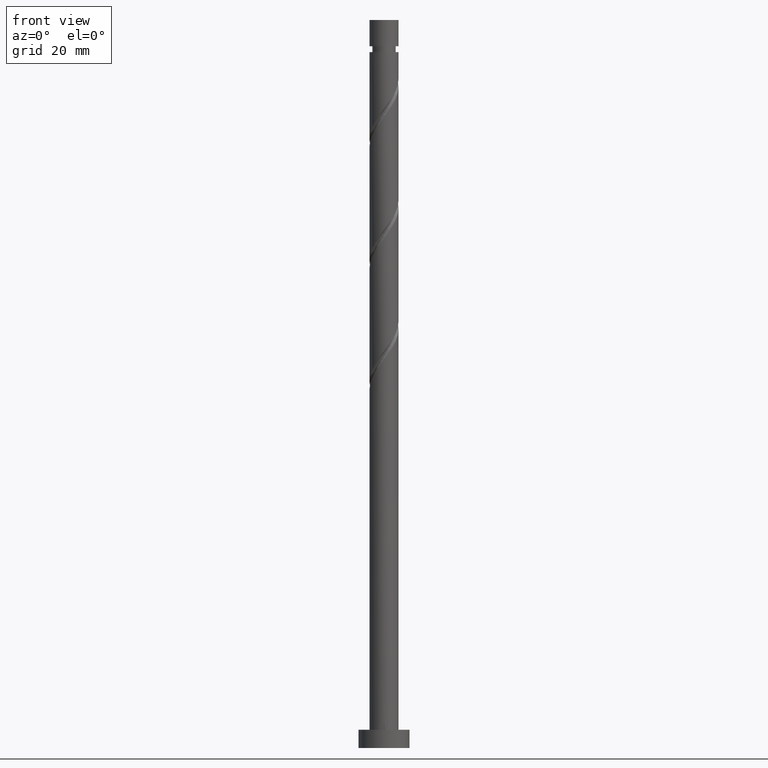
[diagram: clean part render]
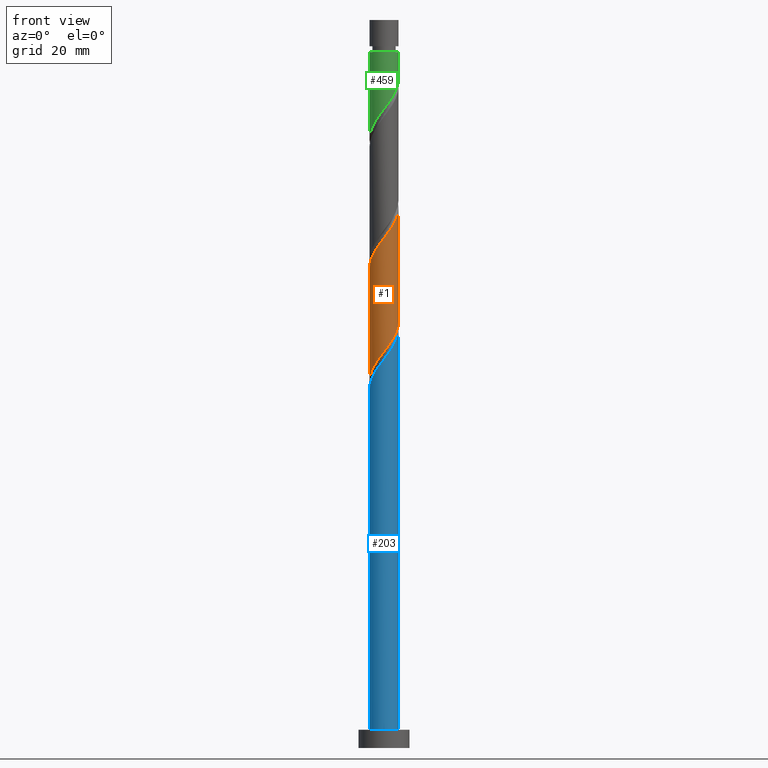
[diagram: same view with three faces highlighted in distinct colors, each labeled with its STEP entity id]
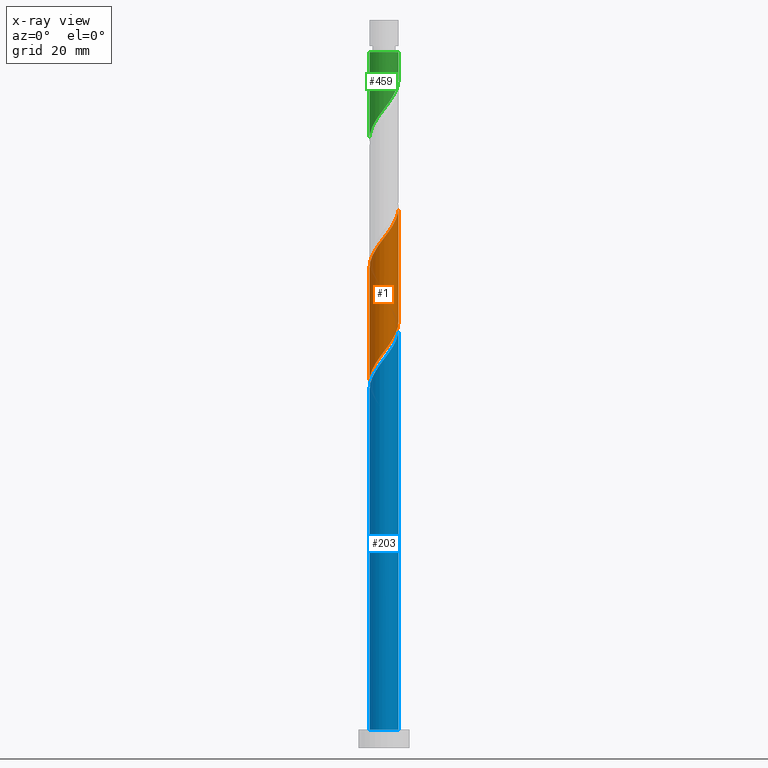
[diagram: x-ray of the same camera — body ghosted, the three highlighted faces saturated]
A machine part, front view with three faces highlighted in distinct colors.
The next image is the same camera in x-ray (body ghosted, the three faces saturated) — at least one of them is partly hidden behind the body in this view.
Their STEP definitions:

[orange] entity #1 — the highlighted cylindrical surface (edge-blend (fillet) strip) has radius 4 mm, axis along (-0, -0, -1).
#1 = ADVANCED_FACE ( 'NONE', ( #851 ), #1402, .T. ) ;
#2 = LINE ( 'NONE', #950, #896 ) ;
#10 = ORIENTED_EDGE ( 'NONE', *, *, #1344, .F. ) ;
#77 = VECTOR ( 'NONE', #1672, 1000.000000000000000 ) ;
#79 = CARTESIAN_POINT ( 'NONE',  ( 3.815205935069463372, -1.312067740227892632, 115.5052289390521310 ) ) ;
#103 = CARTESIAN_POINT ( 'NONE',  ( 3.992446597741906356, -0.2457034069343207172, 148.1441178279410451 ) ) ;
#108 = CARTESIAN_POINT ( 'NONE',  ( -3.960099130553264235, -0.7713189730113380049, 101.6163400501632310 ) ) ;
#120 = CARTESIAN_POINT ( 'NONE',  ( -2.648031390325380929, -3.043886962058129253, 136.3385622723855022 ) ) ;
#128 = CARTESIAN_POINT ( 'NONE',  ( -1.270652482415439266, -3.792814557677653742, 138.4218956057188166 ) ) ;
#151 = CARTESIAN_POINT ( 'NONE',  ( -4.000000000000006217, -3.065525810942113212E-15, 131.8027733949531637 ) ) ;
#220 = CARTESIAN_POINT ( 'NONE',  ( -1.783437906669447237, -3.580411880364394506, 106.4774511612743879 ) ) ;
#227 = VERTEX_POINT ( 'NONE', #976 ) ;
#233 = CARTESIAN_POINT ( 'NONE',  ( -3.625529984802032590, -1.769985991819530646, 103.0052289390521167 ) ) ;
#244 = CARTESIAN_POINT ( 'NONE',  ( -3.792814557677648413, -1.270652482415434381, 102.3107844946077023 ) ) ;
#250 = ORIENTED_EDGE ( 'NONE', *, *, #1560, .T. ) ;
#268 = CARTESIAN_POINT ( 'NONE',  ( 0.7959899496852973488, -3.920000000000006146, 141.1996733834965880 ) ) ;
#282 = CARTESIAN_POINT ( 'NONE',  ( 3.960099130553270452, -0.7713189730113431120, 147.4496733834965312 ) ) ;
#297 = VERTEX_POINT ( 'NONE', #378 ) ;
#303 = LINE ( 'NONE', #1138, #77 ) ;
#326 = ORIENTED_EDGE ( 'NONE', *, *, #1290, .F. ) ;
#334 = EDGE_LOOP ( 'NONE', ( #326, #818, #250, #10 ) ) ;
#357 = CARTESIAN_POINT ( 'NONE',  ( -1.312067740227890411, -3.815205935069464704, 107.1718956057187881 ) ) ;
#369 = CARTESIAN_POINT ( 'NONE',  ( 2.209008691072452013, -3.334708473430080478, 112.0330067168299166 ) ) ;
#377 = CARTESIAN_POINT ( 'NONE',  ( 0.7713189730113366727, -3.960099130553264235, 109.9496733834965738 ) ) ;
#378 = CARTESIAN_POINT ( 'NONE',  ( -4.000000000000006217, -3.065525810942113212E-15, 131.8027733949531637 ) ) ;
#402 = CARTESIAN_POINT ( 'NONE',  ( -0.2457034069343184968, -3.992446597741906356, 139.8107844946077023 ) ) ;
#404 = CARTESIAN_POINT ( 'NONE',  ( -4.000000000000001776, -0.1229678066306902767, 100.7597370600681472 ) ) ;
#483 = CARTESIAN_POINT ( 'NONE',  ( 4.000000000000000000, 5.174009417492574001E-15, 117.2632400387066554 ) ) ;
#515 = CARTESIAN_POINT ( 'NONE',  ( 2.649347517584567324, -2.996824607992357503, 143.9774511612743595 ) ) ;
#535 = CARTESIAN_POINT ( 'NONE',  ( -3.920000000000006146, -0.7959899496852977929, 132.8663400501632736 ) ) ;
#616 = CARTESIAN_POINT ( 'NONE',  ( 2.648031390325374268, -3.043886962058127033, 112.7274511612743453 ) ) ;
#654 = CARTESIAN_POINT ( 'NONE',  ( -1.769985991819535753, -3.625529984802036587, 137.7274511612743311 ) ) ;
#662 = CARTESIAN_POINT ( 'NONE',  ( -0.7713189730113413356, -3.960099130553270452, 139.1163400501632452 ) ) ;
#671 = CARTESIAN_POINT ( 'NONE',  ( -4.000000000000008882, -0.4020151261036734591, 132.3361997641424352 ) ) ;
#713 = CARTESIAN_POINT ( 'NONE',  ( 0.000000000000000000, 0.000000000000000000, 200.0000000000000000 ) ) ;
#789 = CARTESIAN_POINT ( 'NONE',  ( -3.992446597741900582, -0.2457034069343160543, 100.9218956057188308 ) ) ;
#798 = CARTESIAN_POINT ( 'NONE',  ( -3.815205935069471810, -1.312067740227889967, 133.5607844946076739 ) ) ;
#818 = ORIENTED_EDGE ( 'NONE', *, *, #1587, .F. ) ;
#826 =( BOUNDED_CURVE ( )  B_SPLINE_CURVE ( 2, ( #483, #881, #1052, #79, #1039, #1720, #1583, #616, #369, #1702, #1594, #377, #1027, #1561, #889, #357, #220, #1460, #918, #901, #1452, #233, #244, #108, #789, #404, #827 ),
 .UNSPECIFIED., .F., .T. ) 
 B_SPLINE_CURVE_WITH_KNOTS ( ( 3, 2, 2, 2, 2, 2, 2, 2, 2, 2, 2, 2, 2, 3 ),
 ( 0.8045317669814462391, 0.8125000000000000000, 0.8229166666666666297, 0.8333333333333333703, 0.8437500000000000000, 0.8541666666666666297, 0.8645833333333333703, 0.8750000000000000000, 0.8854166666666666297, 0.8958333333333333703, 0.9062500000000000000, 0.9166666666666666297, 0.9270833333333333703, 0.9295317669814463502 ),
 .UNSPECIFIED. ) 
 CURVE ( )  GEOMETRIC_REPRESENTATION_ITEM ( )  RATIONAL_B_SPLINE_CURVE ( ( 0.9062941362546402813, 0.9031415850403443635, 0.9090909090909198298, 0.9013135103398383086, 0.9090909090909198298, 0.9013135103398383086, 0.9090909090909198298, 0.9013135103398383086, 0.9090909090909198298, 0.9013135103398383086, 0.9090909090909198298, 0.9013135103398383086, 0.9090909090909198298, 0.9013135103398383086, 0.9090909090909198298, 0.9013135103398383086, 0.9090909090909198298, 0.9013135103398383086, 0.9090909090909198298, 0.9013135103398383086, 0.9090909090909198298, 0.9013135103398383086, 0.9090909090909198298, 0.9013135103398383086, 0.9090909090909198298, 0.9072628343904135528, 0.9062941362546401702 ) ) 
 REPRESENTATION_ITEM ( '' )  );
#827 = CARTESIAN_POINT ( 'NONE',  ( -4.000000000000000000, 4.964656435281891898E-15, 100.5965733720399697 ) ) ;
#838 = VERTEX_POINT ( 'NONE', #1308 ) ;
#851 = FACE_OUTER_BOUND ( 'NONE', #334, .T. ) ;
#881 = CARTESIAN_POINT ( 'NONE',  ( 4.000000000000002665, -0.4020151261036836177, 116.7298136695173838 ) ) ;
#889 = CARTESIAN_POINT ( 'NONE',  ( -0.7959899496852980150, -3.919999999999999929, 107.8663400501632310 ) ) ;
#896 = VECTOR ( 'NONE', #1228, 1000.000000000000000 ) ;
#901 = CARTESIAN_POINT ( 'NONE',  ( -3.043886962058127033, -2.648031390325374712, 104.3941178279410309 ) ) ;
#918 = CARTESIAN_POINT ( 'NONE',  ( -2.649347517584565992, -2.996824607992349954, 105.0885622723854880 ) ) ;
#941 = CARTESIAN_POINT ( 'NONE',  ( 0.2799121591427039535, -4.024794064930540927, 140.5052289390521025 ) ) ;
#942 = AXIS2_PLACEMENT_3D ( 'NONE', #713, #981, #1256 ) ;
#950 = CARTESIAN_POINT ( 'NONE',  ( -4.000000000000000000, 0.000000000000000000, 200.0000000000000000 ) ) ;
#976 = CARTESIAN_POINT ( 'NONE',  ( 4.000000000000006217, 5.233824555267022004E-16, 148.4694400616198209 ) ) ;
#981 = DIRECTION ( 'NONE',  ( -0.000000000000000000, -0.000000000000000000, -1.000000000000000000 ) ) ;
#992 = CARTESIAN_POINT ( 'NONE',  ( -4.000000000000000000, 4.964656435281891898E-15, 100.5965733720399840 ) ) ;
#1027 = CARTESIAN_POINT ( 'NONE',  ( 0.2457034069343148608, -3.992446597741900582, 109.2552289390521452 ) ) ;
#1039 = CARTESIAN_POINT ( 'NONE',  ( 3.580411880364393618, -1.783437906669449236, 114.8107844946077023 ) ) ;
#1052 = CARTESIAN_POINT ( 'NONE',  ( 3.919999999999999929, -0.7959899496852981260, 116.1996733834965880 ) ) ;
#1088 = CARTESIAN_POINT ( 'NONE',  ( 1.312067740227889967, -3.815205935069471810, 141.8941178279410735 ) ) ;
#1119 = CARTESIAN_POINT ( 'NONE',  ( 4.000000000000005329, -0.1229678066307032802, 148.3062763735916860 ) ) ;
#1138 = CARTESIAN_POINT ( 'NONE',  ( 4.000000000000000000, 4.898587196589412829E-16, 200.0000000000000000 ) ) ;
#1225 = CARTESIAN_POINT ( 'NONE',  ( 3.334708473430082698, -2.209008691072460451, 145.3663400501633021 ) ) ;
#1228 = DIRECTION ( 'NONE',  ( -0.000000000000000000, -0.000000000000000000, -1.000000000000000000 ) ) ;
#1235 = CARTESIAN_POINT ( 'NONE',  ( -3.580411880364401167, -1.783437906669447681, 134.2552289390521878 ) ) ;
#1256 = DIRECTION ( 'NONE',  ( -1.000000000000000000, 0.000000000000000000, 0.000000000000000000 ) ) ;
#1290 = EDGE_CURVE ( 'NONE', #227, #838, #303, .T. ) ;
#1308 = CARTESIAN_POINT ( 'NONE',  ( 4.000000000000000000, 5.174009417492574001E-15, 117.2632400387066696 ) ) ;
#1341 = CARTESIAN_POINT ( 'NONE',  ( -3.345617825659331857, -2.254808073111004951, 134.9496733834966165 ) ) ;
#1344 = EDGE_CURVE ( 'NONE', #838, #1625, #826, .T. ) ;
#1349 = CARTESIAN_POINT ( 'NONE',  ( -2.209008691072457786, -3.334708473430083586, 137.0330067168299024 ) ) ;
#1353 = CARTESIAN_POINT ( 'NONE',  ( 2.254808073111004063, -3.345617825659332301, 143.2830067168299024 ) ) ;
#1402 = CYLINDRICAL_SURFACE ( 'NONE', #942, 4.000000000000000000 ) ;
#1452 = CARTESIAN_POINT ( 'NONE',  ( -3.334708473430078701, -2.209008691072453345, 103.6996733834966022 ) ) ;
#1460 = CARTESIAN_POINT ( 'NONE',  ( -2.254808073111004063, -3.345617825659326083, 105.7830067168299166 ) ) ;
#1476 = CARTESIAN_POINT ( 'NONE',  ( 3.043886962058129253, -2.648031390325380929, 144.6718956057188166 ) ) ;
#1479 = CARTESIAN_POINT ( 'NONE',  ( -2.996824607992356615, -2.649347517584567324, 135.6441178279410735 ) ) ;
#1494 = CARTESIAN_POINT ( 'NONE',  ( 3.792814557677653742, -1.270652482415439266, 146.7552289390521594 ) ) ;
#1537 =( BOUNDED_CURVE ( )  B_SPLINE_CURVE ( 2, ( #151, #671, #535, #798, #1235, #1341, #1479, #120, #1349, #654, #128, #662, #402, #941, #268, #1088, #1617, #1353, #515, #1476, #1225, #1626, #1494, #282, #103, #1119, #1656 ),
 .UNSPECIFIED., .F., .T. ) 
 B_SPLINE_CURVE_WITH_KNOTS ( ( 3, 2, 2, 2, 2, 2, 2, 2, 2, 2, 2, 2, 2, 3 ),
 ( 0.3045317669814460726, 0.3125000000000000000, 0.3229166666666666297, 0.3333333333333333703, 0.3437500000000000000, 0.3541666666666666297, 0.3645833333333333703, 0.3750000000000000000, 0.3854166666666666297, 0.3958333333333333703, 0.4062500000000000000, 0.4166666666666666297, 0.4270833333333333703, 0.4295317669814461836 ),
 .UNSPECIFIED. ) 
 CURVE ( )  GEOMETRIC_REPRESENTATION_ITEM ( )  RATIONAL_B_SPLINE_CURVE ( ( 0.9062941362546460544, 0.9031415850403501366, 0.9090909090909254919, 0.9013135103398440817, 0.9090909090909254919, 0.9013135103398440817, 0.9090909090909254919, 0.9013135103398440817, 0.9090909090909254919, 0.9013135103398440817, 0.9090909090909254919, 0.9013135103398440817, 0.9090909090909254919, 0.9013135103398440817, 0.9090909090909254919, 0.9013135103398440817, 0.9090909090909254919, 0.9013135103398440817, 0.9090909090909254919, 0.9013135103398440817, 0.9090909090909254919, 0.9013135103398440817, 0.9090909090909254919, 0.9013135103398440817, 0.9090909090909254919, 0.9072628343904194370, 0.9062941362546459434 ) ) 
 REPRESENTATION_ITEM ( '' )  );
#1560 = EDGE_CURVE ( 'NONE', #297, #1625, #2, .T. ) ;
#1561 = CARTESIAN_POINT ( 'NONE',  ( -0.2799121591427069511, -4.024794064930535598, 108.5607844946076881 ) ) ;
#1583 = CARTESIAN_POINT ( 'NONE',  ( 2.996824607992349954, -2.649347517584566436, 113.4218956057188024 ) ) ;
#1587 = EDGE_CURVE ( 'NONE', #297, #227, #1537, .T. ) ;
#1594 = CARTESIAN_POINT ( 'NONE',  ( 1.270652482415433937, -3.792814557677649301, 110.6441178279410167 ) ) ;
#1617 = CARTESIAN_POINT ( 'NONE',  ( 1.783437906669447015, -3.580411880364402499, 142.5885622723855022 ) ) ;
#1625 = VERTEX_POINT ( 'NONE', #992 ) ;
#1626 = CARTESIAN_POINT ( 'NONE',  ( 3.625529984802036143, -1.769985991819535753, 146.0607844946076739 ) ) ;
#1656 = CARTESIAN_POINT ( 'NONE',  ( 4.000000000000006217, 5.233824555267022004E-16, 148.4694400616198209 ) ) ;
#1672 = DIRECTION ( 'NONE',  ( -0.000000000000000000, -0.000000000000000000, -1.000000000000000000 ) ) ;
#1702 = CARTESIAN_POINT ( 'NONE',  ( 1.769985991819530646, -3.625529984802032590, 111.3385622723854596 ) ) ;
#1720 = CARTESIAN_POINT ( 'NONE',  ( 3.345617825659324751, -2.254808073111005395, 114.1163400501632452 ) ) ;

[blue] entity #203 — the highlighted cylindrical surface (edge-blend (fillet) strip) has radius 4 mm, axis along (-0, -0, -1).
#3 = CARTESIAN_POINT ( 'NONE',  ( 3.792814557677653742, -1.270652482415439266, 113.4218956057188166 ) ) ;
#26 = EDGE_CURVE ( 'NONE', #1149, #1456, #157, .T. ) ;
#33 = FACE_OUTER_BOUND ( 'NONE', #1139, .T. ) ;
#36 = ORIENTED_EDGE ( 'NONE', *, *, #26, .T. ) ;
#97 = CARTESIAN_POINT ( 'NONE',  ( -2.209008691072457786, -3.334708473430083586, 103.6996733834965738 ) ) ;
#102 = VERTEX_POINT ( 'NONE', #1431 ) ;
#154 = CARTESIAN_POINT ( 'NONE',  ( 3.960099130553270452, -0.7713189730113431120, 114.1163400501632310 ) ) ;
#157 = CIRCLE ( 'NONE', #184, 4.000000000000000000 ) ;
#184 = AXIS2_PLACEMENT_3D ( 'NONE', #732, #1655, #1529 ) ;
#203 = ADVANCED_FACE ( 'NONE', ( #33 ), #1416, .T. ) ;
#221 = CARTESIAN_POINT ( 'NONE',  ( -3.920000000000006146, -0.7959899496852977929, 99.53300671682993084 ) ) ;
#234 = CARTESIAN_POINT ( 'NONE',  ( -2.996824607992356615, -2.649347517584567324, 102.3107844946077023 ) ) ;
#264 = CARTESIAN_POINT ( 'NONE',  ( -0.7713189730113413356, -3.960099130553270452, 105.7830067168299166 ) ) ;
#271 = DIRECTION ( 'NONE',  ( -0.000000000000000000, -0.000000000000000000, -1.000000000000000000 ) ) ;
#286 = CARTESIAN_POINT ( 'NONE',  ( 3.043886962058129253, -2.648031390325380929, 111.3385622723854596 ) ) ;
#292 = CARTESIAN_POINT ( 'NONE',  ( 3.992446597741906356, -0.2457034069343207172, 114.8107844946077165 ) ) ;
#331 =( BOUNDED_CURVE ( )  B_SPLINE_CURVE ( 2, ( #645, #1438, #221, #769, #1310, #1721, #234, #779, #97, #633, #1613, #264, #1372, #828, #1085, #388, #521, #656, #1203, #286, #1221, #666, #3, #154, #292, #809, #1351 ),
 .UNSPECIFIED., .F., .T. ) 
 B_SPLINE_CURVE_WITH_KNOTS ( ( 3, 2, 2, 2, 2, 2, 2, 2, 2, 2, 2, 2, 2, 3 ),
 ( 0.05453176698144620443, 0.06250000000000000000, 0.07291666666666662966, 0.08333333333333337034, 0.09375000000000000000, 0.1041666666666666297, 0.1145833333333333703, 0.1250000000000000000, 0.1354166666666666297, 0.1458333333333333703, 0.1562500000000000000, 0.1666666666666666297, 0.1770833333333333703, 0.1795317669814461559 ),
 .UNSPECIFIED. ) 
 CURVE ( )  GEOMETRIC_REPRESENTATION_ITEM ( )  RATIONAL_B_SPLINE_CURVE ( ( 0.9062941362546459434, 0.9031415850403501366, 0.9090909090909254919, 0.9013135103398440817, 0.9090909090909254919, 0.9013135103398440817, 0.9090909090909254919, 0.9013135103398440817, 0.9090909090909254919, 0.9013135103398440817, 0.9090909090909254919, 0.9013135103398440817, 0.9090909090909254919, 0.9013135103398440817, 0.9090909090909254919, 0.9013135103398440817, 0.9090909090909254919, 0.9013135103398440817, 0.9090909090909254919, 0.9013135103398440817, 0.9090909090909254919, 0.9013135103398440817, 0.9090909090909254919, 0.9013135103398440817, 0.9090909090909254919, 0.9072628343904194370, 0.9062941362546460544 ) ) 
 REPRESENTATION_ITEM ( '' )  );
#386 = EDGE_CURVE ( 'NONE', #102, #1395, #331, .T. ) ;
#388 = CARTESIAN_POINT ( 'NONE',  ( 1.312067740227889967, -3.815205935069471810, 108.5607844946077023 ) ) ;
#409 = ORIENTED_EDGE ( 'NONE', *, *, #386, .F. ) ;
#430 = AXIS2_PLACEMENT_3D ( 'NONE', #1679, #1392, #1145 ) ;
#452 = CARTESIAN_POINT ( 'NONE',  ( -4.000000000000000000, 0.000000000000000000, 5.000000000000000000 ) ) ;
#521 = CARTESIAN_POINT ( 'NONE',  ( 1.783437906669447015, -3.580411880364402499, 109.2552289390521452 ) ) ;
#537 = CARTESIAN_POINT ( 'NONE',  ( 4.000000000000006217, 5.233824555267022004E-16, 115.1361067282865207 ) ) ;
#633 = CARTESIAN_POINT ( 'NONE',  ( -1.769985991819535753, -3.625529984802036587, 104.3941178279410167 ) ) ;
#645 = CARTESIAN_POINT ( 'NONE',  ( -4.000000000000006217, -3.065525810942113212E-15, 98.46944006161984930 ) ) ;
#656 = CARTESIAN_POINT ( 'NONE',  ( 2.254808073111004063, -3.345617825659332301, 109.9496733834965596 ) ) ;
#666 = CARTESIAN_POINT ( 'NONE',  ( 3.625529984802036143, -1.769985991819535753, 112.7274511612743453 ) ) ;
#732 = CARTESIAN_POINT ( 'NONE',  ( 0.000000000000000000, 0.000000000000000000, 5.000000000000000000 ) ) ;
#769 = CARTESIAN_POINT ( 'NONE',  ( -3.815205935069471810, -1.312067740227889967, 100.2274511612743595 ) ) ;
#779 = CARTESIAN_POINT ( 'NONE',  ( -2.648031390325380929, -3.043886962058129253, 103.0052289390521310 ) ) ;
#809 = CARTESIAN_POINT ( 'NONE',  ( 4.000000000000005329, -0.1229678066307046680, 114.9729430402583574 ) ) ;
#811 = ORIENTED_EDGE ( 'NONE', *, *, #1536, .T. ) ;
#824 = ORIENTED_EDGE ( 'NONE', *, *, #1012, .F. ) ;
#828 = CARTESIAN_POINT ( 'NONE',  ( 0.2799121591427039535, -4.024794064930540927, 107.1718956057188024 ) ) ;
#924 = LINE ( 'NONE', #1478, #1006 ) ;
#1006 = VECTOR ( 'NONE', #1104, 1000.000000000000000 ) ;
#1012 = EDGE_CURVE ( 'NONE', #1395, #1456, #924, .T. ) ;
#1085 = CARTESIAN_POINT ( 'NONE',  ( 0.7959899496852973488, -3.920000000000006146, 107.8663400501632310 ) ) ;
#1104 = DIRECTION ( 'NONE',  ( -0.000000000000000000, -0.000000000000000000, -1.000000000000000000 ) ) ;
#1139 = EDGE_LOOP ( 'NONE', ( #824, #409, #811, #36 ) ) ;
#1145 = DIRECTION ( 'NONE',  ( -1.000000000000000000, 0.000000000000000000, 0.000000000000000000 ) ) ;
#1149 = VERTEX_POINT ( 'NONE', #452 ) ;
#1203 = CARTESIAN_POINT ( 'NONE',  ( 2.649347517584567324, -2.996824607992357503, 110.6441178279410309 ) ) ;
#1221 = CARTESIAN_POINT ( 'NONE',  ( 3.334708473430082698, -2.209008691072460451, 112.0330067168299308 ) ) ;
#1310 = CARTESIAN_POINT ( 'NONE',  ( -3.580411880364401167, -1.783437906669447681, 100.9218956057188308 ) ) ;
#1351 = CARTESIAN_POINT ( 'NONE',  ( 4.000000000000006217, 5.233824555267022004E-16, 115.1361067282865207 ) ) ;
#1372 = CARTESIAN_POINT ( 'NONE',  ( -0.2457034069343184968, -3.992446597741906356, 106.4774511612743879 ) ) ;
#1392 = DIRECTION ( 'NONE',  ( -0.000000000000000000, -0.000000000000000000, -1.000000000000000000 ) ) ;
#1395 = VERTEX_POINT ( 'NONE', #537 ) ;
#1416 = CYLINDRICAL_SURFACE ( 'NONE', #430, 4.000000000000000000 ) ;
#1431 = CARTESIAN_POINT ( 'NONE',  ( -4.000000000000006217, -3.065525810942113212E-15, 98.46944006161984930 ) ) ;
#1435 = CARTESIAN_POINT ( 'NONE',  ( 4.000000000000000000, 4.898587196589412829E-16, 5.000000000000000000 ) ) ;
#1438 = CARTESIAN_POINT ( 'NONE',  ( -4.000000000000007105, -0.4020151261036800650, 99.00286643080910665 ) ) ;
#1441 = VECTOR ( 'NONE', #271, 1000.000000000000000 ) ;
#1456 = VERTEX_POINT ( 'NONE', #1435 ) ;
#1478 = CARTESIAN_POINT ( 'NONE',  ( 4.000000000000000000, 4.898587196589412829E-16, 200.0000000000000000 ) ) ;
#1529 = DIRECTION ( 'NONE',  ( 1.000000000000000000, 0.000000000000000000, 0.000000000000000000 ) ) ;
#1536 = EDGE_CURVE ( 'NONE', #102, #1149, #1603, .T. ) ;
#1591 = CARTESIAN_POINT ( 'NONE',  ( -4.000000000000000000, 0.000000000000000000, 200.0000000000000000 ) ) ;
#1603 = LINE ( 'NONE', #1591, #1441 ) ;
#1613 = CARTESIAN_POINT ( 'NONE',  ( -1.270652482415439266, -3.792814557677653742, 105.0885622723855164 ) ) ;
#1655 = DIRECTION ( 'NONE',  ( 0.000000000000000000, 0.000000000000000000, 1.000000000000000000 ) ) ;
#1679 = CARTESIAN_POINT ( 'NONE',  ( 0.000000000000000000, 0.000000000000000000, 200.0000000000000000 ) ) ;
#1721 = CARTESIAN_POINT ( 'NONE',  ( -3.345617825659331857, -2.254808073111004951, 101.6163400501632594 ) ) ;

[green] entity #459 — the highlighted cylindrical surface (edge-blend (fillet) strip) has radius 4 mm, axis along (-0, -0, -1).
#67 = CARTESIAN_POINT ( 'NONE',  ( -2.254808073111004063, -3.345617825659326083, 172.4496733834965880 ) ) ;
#135 = VERTEX_POINT ( 'NONE', #1382 ) ;
#150 = ORIENTED_EDGE ( 'NONE', *, *, #786, .F. ) ;
#173 = VERTEX_POINT ( 'NONE', #598 ) ;
#175 = CARTESIAN_POINT ( 'NONE',  ( -3.999999999999989786, 0.000000000000000000, 191.1996733834965880 ) ) ;
#181 = DIRECTION ( 'NONE',  ( -0.000000000000000000, -0.000000000000000000, -1.000000000000000000 ) ) ;
#202 = DIRECTION ( 'NONE',  ( -0.000000000000000000, -0.000000000000000000, -1.000000000000000000 ) ) ;
#210 = CARTESIAN_POINT ( 'NONE',  ( 3.345617825659324751, -2.254808073111005395, 180.7830067168299593 ) ) ;
#217 = CARTESIAN_POINT ( 'NONE',  ( -1.783437906669447237, -3.580411880364394506, 173.1441178279410167 ) ) ;
#230 = CARTESIAN_POINT ( 'NONE',  ( -4.000000000000000888, -0.1229678066306853501, 167.4264037267347476 ) ) ;
#239 = EDGE_CURVE ( 'NONE', #173, #495, #406, .T. ) ;
#272 = DIRECTION ( 'NONE',  ( -1.000000000000000000, 0.000000000000000000, 0.000000000000000000 ) ) ;
#281 = ORIENTED_EDGE ( 'NONE', *, *, #239, .T. ) ;
#336 = CARTESIAN_POINT ( 'NONE',  ( -3.792814557677648413, -1.270652482415434381, 168.9774511612743311 ) ) ;
#406 = CIRCLE ( 'NONE', #629, 3.999999999999989786 ) ;
#423 = EDGE_LOOP ( 'NONE', ( #468, #281, #940, #150 ) ) ;
#459 = ADVANCED_FACE ( 'NONE', ( #1629 ), #935, .T. ) ;
#465 = DIRECTION ( 'NONE',  ( -1.000000000000000000, 0.000000000000000000, 0.000000000000000000 ) ) ;
#468 = ORIENTED_EDGE ( 'NONE', *, *, #858, .F. ) ;
#473 = LINE ( 'NONE', #482, #821 ) ;
#482 = CARTESIAN_POINT ( 'NONE',  ( 4.000000000000000000, 4.898587196589412829E-16, 200.0000000000000000 ) ) ;
#495 = VERTEX_POINT ( 'NONE', #175 ) ;
#581 = CARTESIAN_POINT ( 'NONE',  ( -4.000000000000000000, 0.000000000000000000, 200.0000000000000000 ) ) ;
#588 = DIRECTION ( 'NONE',  ( -0.000000000000000000, -0.000000000000000000, -1.000000000000000000 ) ) ;
#598 = CARTESIAN_POINT ( 'NONE',  ( 3.999999999999989786, 4.898587196589405926E-16, 191.1996733834965880 ) ) ;
#606 = CARTESIAN_POINT ( 'NONE',  ( -3.992446597741900582, -0.2457034069343160543, 167.5885622723854453 ) ) ;
#629 = AXIS2_PLACEMENT_3D ( 'NONE', #1398, #588, #465 ) ;
#631 = CARTESIAN_POINT ( 'NONE',  ( 2.996824607992349954, -2.649347517584566436, 180.0885622723855022 ) ) ;
#637 =( BOUNDED_CURVE ( )  B_SPLINE_CURVE ( 2, ( #759, #1287, #1318, #1329, #1014, #210, #631, #643, #767, #1688, #1558, #1429, #1422, #869, #1549, #1163, #217, #67, #1582, #1178, #1297, #909, #336, #1025, #606, #230, #1716 ),
 .UNSPECIFIED., .F., .T. ) 
 B_SPLINE_CURVE_WITH_KNOTS ( ( 3, 2, 2, 2, 2, 2, 2, 2, 2, 2, 2, 2, 2, 3 ),
 ( 0.3045317669814459061, 0.3125000000000000000, 0.3229166666666666852, 0.3333333333333333148, 0.3437500000000000000, 0.3541666666666666852, 0.3645833333333333148, 0.3750000000000000000, 0.3854166666666666852, 0.3958333333333333148, 0.4062500000000000000, 0.4166666666666666852, 0.4270833333333333148, 0.4295317669814464057 ),
 .UNSPECIFIED. ) 
 CURVE ( )  GEOMETRIC_REPRESENTATION_ITEM ( )  RATIONAL_B_SPLINE_CURVE ( ( 0.9062941362546406143, 0.9031415850403442525, 0.9090909090909198298, 0.9013135103398383086, 0.9090909090909198298, 0.9013135103398383086, 0.9090909090909198298, 0.9013135103398383086, 0.9090909090909198298, 0.9013135103398383086, 0.9090909090909198298, 0.9013135103398383086, 0.9090909090909198298, 0.9013135103398383086, 0.9090909090909198298, 0.9013135103398383086, 0.9090909090909198298, 0.9013135103398383086, 0.9090909090909198298, 0.9013135103398383086, 0.9090909090909198298, 0.9013135103398383086, 0.9090909090909198298, 0.9013135103398383086, 0.9090909090909198298, 0.9072628343904136639, 0.9062941362546402813 ) ) 
 REPRESENTATION_ITEM ( '' )  );
#643 = CARTESIAN_POINT ( 'NONE',  ( 2.648031390325374268, -3.043886962058127033, 179.3941178279410451 ) ) ;
#644 = AXIS2_PLACEMENT_3D ( 'NONE', #675, #1484, #272 ) ;
#675 = CARTESIAN_POINT ( 'NONE',  ( 0.000000000000000000, 0.000000000000000000, 200.0000000000000000 ) ) ;
#759 = CARTESIAN_POINT ( 'NONE',  ( 4.000000000000000888, 9.121808510608293881E-16, 183.9299067053733552 ) ) ;
#767 = CARTESIAN_POINT ( 'NONE',  ( 2.209008691072452013, -3.334708473430080478, 178.6996733834965596 ) ) ;
#786 = EDGE_CURVE ( 'NONE', #1535, #135, #637, .T. ) ;
#808 = CARTESIAN_POINT ( 'NONE',  ( 4.000000000000000888, 9.121808510608293881E-16, 183.9299067053733552 ) ) ;
#821 = VECTOR ( 'NONE', #202, 1000.000000000000000 ) ;
#858 = EDGE_CURVE ( 'NONE', #173, #1535, #473, .T. ) ;
#869 = CARTESIAN_POINT ( 'NONE',  ( -0.2799121591427069511, -4.024794064930535598, 175.2274511612743879 ) ) ;
#909 = CARTESIAN_POINT ( 'NONE',  ( -3.625529984802032590, -1.769985991819530646, 169.6718956057188166 ) ) ;
#935 = CYLINDRICAL_SURFACE ( 'NONE', #644, 4.000000000000000000 ) ;
#940 = ORIENTED_EDGE ( 'NONE', *, *, #1120, .T. ) ;
#1014 = CARTESIAN_POINT ( 'NONE',  ( 3.580411880364393618, -1.783437906669449236, 181.4774511612743595 ) ) ;
#1025 = CARTESIAN_POINT ( 'NONE',  ( -3.960099130553264235, -0.7713189730113380049, 168.2830067168298740 ) ) ;
#1120 = EDGE_CURVE ( 'NONE', #495, #135, #1546, .T. ) ;
#1163 = CARTESIAN_POINT ( 'NONE',  ( -1.312067740227890411, -3.815205935069464704, 173.8385622723854453 ) ) ;
#1178 = CARTESIAN_POINT ( 'NONE',  ( -3.043886962058127033, -2.648031390325374712, 171.0607844946076455 ) ) ;
#1287 = CARTESIAN_POINT ( 'NONE',  ( 4.000000000000004441, -0.4020151261036689627, 183.3964803361840268 ) ) ;
#1297 = CARTESIAN_POINT ( 'NONE',  ( -3.334708473430078701, -2.209008691072453345, 170.3663400501632452 ) ) ;
#1318 = CARTESIAN_POINT ( 'NONE',  ( 3.919999999999999929, -0.7959899496852981260, 182.8663400501632736 ) ) ;
#1329 = CARTESIAN_POINT ( 'NONE',  ( 3.815205935069463372, -1.312067740227892632, 182.1718956057188450 ) ) ;
#1382 = CARTESIAN_POINT ( 'NONE',  ( -4.000000000000000888, -1.973899546557860729E-15, 167.2632400387066696 ) ) ;
#1398 = CARTESIAN_POINT ( 'NONE',  ( 0.000000000000000000, 0.000000000000000000, 191.1996733834965880 ) ) ;
#1422 = CARTESIAN_POINT ( 'NONE',  ( 0.2457034069343148608, -3.992446597741900582, 175.9218956057188166 ) ) ;
#1429 = CARTESIAN_POINT ( 'NONE',  ( 0.7713189730113366727, -3.960099130553264235, 176.6163400501632736 ) ) ;
#1484 = DIRECTION ( 'NONE',  ( -0.000000000000000000, -0.000000000000000000, -1.000000000000000000 ) ) ;
#1535 = VERTEX_POINT ( 'NONE', #808 ) ;
#1546 = LINE ( 'NONE', #581, #1690 ) ;
#1549 = CARTESIAN_POINT ( 'NONE',  ( -0.7959899496852980150, -3.919999999999999929, 174.5330067168299024 ) ) ;
#1558 = CARTESIAN_POINT ( 'NONE',  ( 1.270652482415433937, -3.792814557677649301, 177.3107844946077307 ) ) ;
#1582 = CARTESIAN_POINT ( 'NONE',  ( -2.649347517584565992, -2.996824607992349954, 171.7552289390521594 ) ) ;
#1629 = FACE_OUTER_BOUND ( 'NONE', #423, .T. ) ;
#1688 = CARTESIAN_POINT ( 'NONE',  ( 1.769985991819530646, -3.625529984802032590, 178.0052289390521594 ) ) ;
#1690 = VECTOR ( 'NONE', #181, 1000.000000000000000 ) ;
#1716 = CARTESIAN_POINT ( 'NONE',  ( -4.000000000000000888, -1.973899546557860335E-15, 167.2632400387066696 ) ) ;